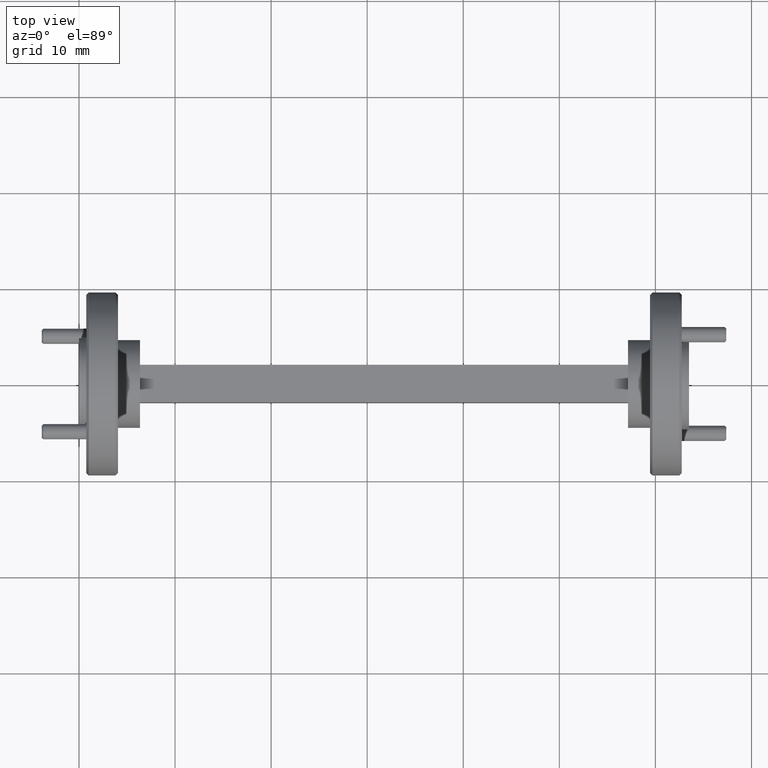
[diagram: clean part render]
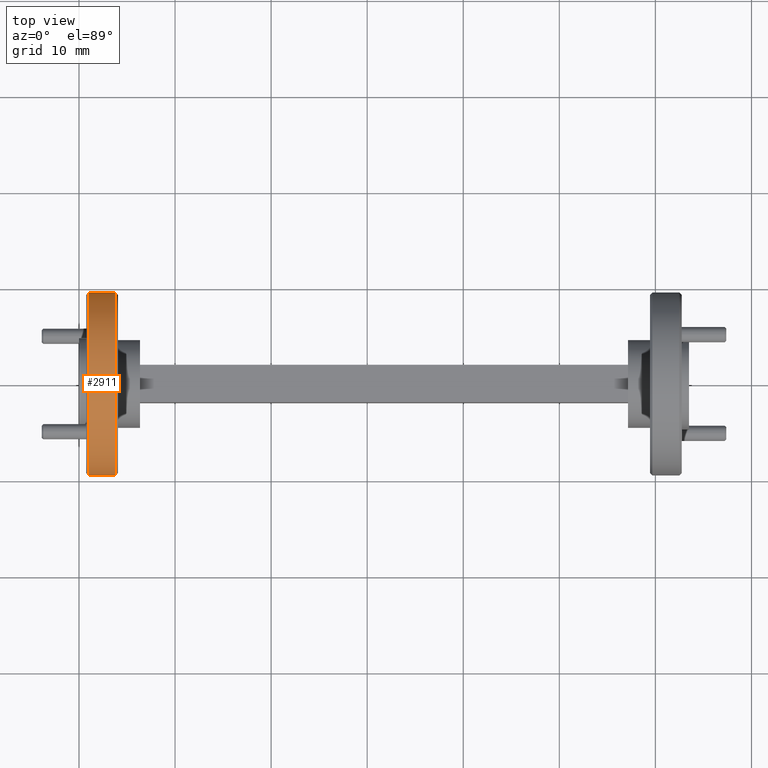
[diagram: same view with one face highlighted and labeled with its STEP entity id]
A machine part, top view. The second image highlights one B-rep face of the part: STEP entity #2911.
In plain terms, the highlighted cylindrical surface (partial cylindrical patch) has radius 9.525 mm, axis along (1, 0, -0).
Its self-contained STEP definition (entity closure, byte-faithful):
#6 = VERTEX_POINT ( 'NONE', #2014 ) ;
#67 = ORIENTED_EDGE ( 'NONE', *, *, #2233, .T. ) ;
#289 = VECTOR ( 'NONE', #1967, 39.37007874015748143 ) ;
#311 = EDGE_CURVE ( 'NONE', #3179, #1489, #734, .T. ) ;
#343 = CARTESIAN_POINT ( 'NONE',  ( 0.1500000000000007994, 0.3749999999999996669, 0.000000000000000000 ) ) ;
#485 = CARTESIAN_POINT ( 'NONE',  ( 0.1500000000000008549, 1.779412333667238007E-17, 0.000000000000000000 ) ) ;
#581 = CARTESIAN_POINT ( 'NONE',  ( -1.862448192378166163E-13, -0.3749999999999996669, 4.592425496802570521E-17 ) ) ;
#734 = CIRCLE ( 'NONE', #3815, 0.3749999999999996669 ) ;
#775 = EDGE_LOOP ( 'NONE', ( #1165, #67, #4076, #3927 ) ) ;
#942 = EDGE_CURVE ( 'NONE', #6, #1489, #1130, .T. ) ;
#1023 = AXIS2_PLACEMENT_3D ( 'NONE', #3490, #4297, #1630 ) ;
#1040 = CARTESIAN_POINT ( 'NONE',  ( 0.1500000000000008826, -0.3749999999999996669, 4.592425496802570521E-17 ) ) ;
#1130 = LINE ( 'NONE', #2483, #2696 ) ;
#1165 = ORIENTED_EDGE ( 'NONE', *, *, #1785, .T. ) ;
#1489 = VERTEX_POINT ( 'NONE', #343 ) ;
#1593 = AXIS2_PLACEMENT_3D ( 'NONE', #2942, #2608, #3296 ) ;
#1630 = DIRECTION ( 'NONE',  ( 1.138269997360110660E-16, -1.000000000000000000, 0.000000000000000000 ) ) ;
#1785 = EDGE_CURVE ( 'NONE', #6, #2065, #2850, .T. ) ;
#1967 = DIRECTION ( 'NONE',  ( 1.000000000000000000, 1.224646799147353454E-16, -0.000000000000000000 ) ) ;
#2014 = CARTESIAN_POINT ( 'NONE',  ( 0.03999999999999988981, 0.3749999999999996669, 0.000000000000000000 ) ) ;
#2065 = VERTEX_POINT ( 'NONE', #3846 ) ;
#2233 = EDGE_CURVE ( 'NONE', #2065, #3179, #2976, .T. ) ;
#2291 = CYLINDRICAL_SURFACE ( 'NONE', #1593, 0.3749999999999996669 ) ;
#2483 = CARTESIAN_POINT ( 'NONE',  ( -1.863366677477526361E-13, 0.3749999999999996669, 0.000000000000000000 ) ) ;
#2608 = DIRECTION ( 'NONE',  ( 1.000000000000000000, 1.224646799147353454E-16, -0.000000000000000000 ) ) ;
#2696 = VECTOR ( 'NONE', #4116, 39.37007874015748143 ) ;
#2850 = CIRCLE ( 'NONE', #1023, 0.3749999999999996669 ) ;
#2911 = ADVANCED_FACE ( 'NONE', ( #3269 ), #2291, .T. ) ;
#2942 = CARTESIAN_POINT ( 'NONE',  ( -1.862907434927846262E-13, -5.755786505608412837E-19, 0.000000000000000000 ) ) ;
#2947 = DIRECTION ( 'NONE',  ( -1.000000000000000000, -1.224646799147350742E-16, 0.000000000000000000 ) ) ;
#2976 = LINE ( 'NONE', #581, #289 ) ;
#3179 = VERTEX_POINT ( 'NONE', #1040 ) ;
#3269 = FACE_OUTER_BOUND ( 'NONE', #775, .T. ) ;
#3296 = DIRECTION ( 'NONE',  ( -1.224646799147020653E-16, 1.000000000000000000, 0.000000000000000000 ) ) ;
#3490 = CARTESIAN_POINT ( 'NONE',  ( 0.03999999999999993144, 4.323008546051379020E-18, 0.000000000000000000 ) ) ;
#3815 = AXIS2_PLACEMENT_3D ( 'NONE', #485, #2947, #4263 ) ;
#3846 = CARTESIAN_POINT ( 'NONE',  ( 0.03999999999999997308, -0.3749999999999996669, 4.592425496802570521E-17 ) ) ;
#3927 = ORIENTED_EDGE ( 'NONE', *, *, #942, .F. ) ;
#4076 = ORIENTED_EDGE ( 'NONE', *, *, #311, .T. ) ;
#4116 = DIRECTION ( 'NONE',  ( 1.000000000000000000, 1.224646799147353454E-16, -0.000000000000000000 ) ) ;
#4263 = DIRECTION ( 'NONE',  ( -1.365923996832132842E-16, 1.000000000000000000, 0.000000000000000000 ) ) ;
#4297 = DIRECTION ( 'NONE',  ( 1.000000000000000000, 1.224646799147353947E-16, -0.000000000000000000 ) ) ;